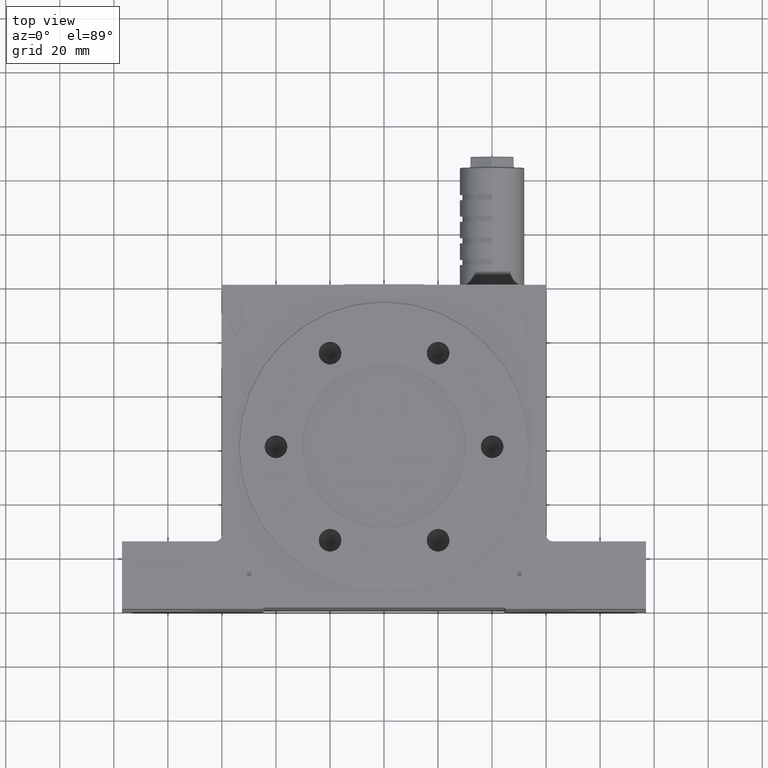
[diagram: clean part render]
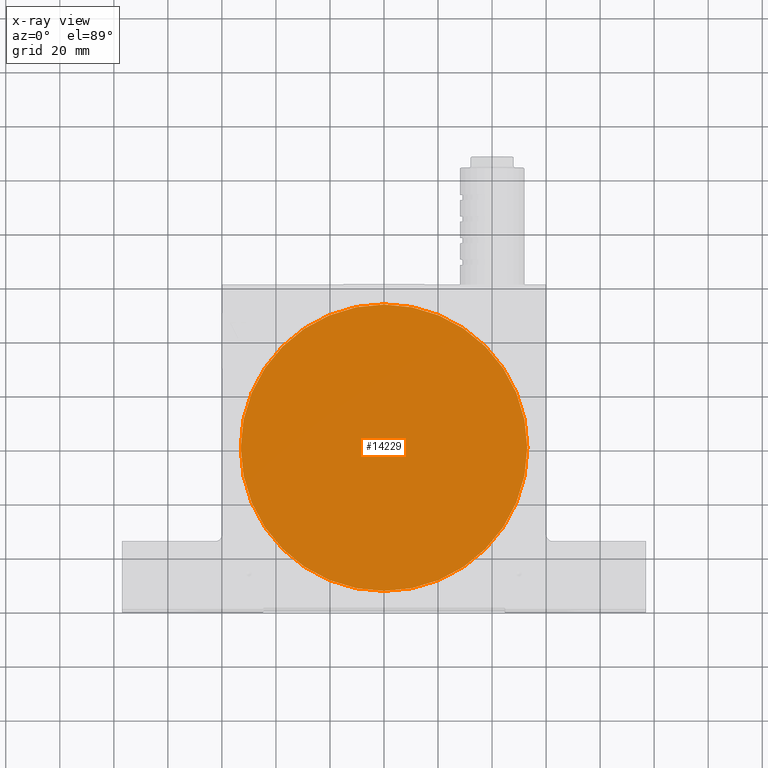
[diagram: x-ray — body ghosted, one internal face saturated and labeled with its STEP entity id]
A machine part, top view, then the same camera in x-ray: the body is ghosted and one INTERNAL B-rep face — a face not visible from any outside direction — is saturated and labeled: STEP entity #14229.
In plain terms, the highlighted planar face has unit normal (0, 0, 1).
Its self-contained STEP definition (entity closure, byte-faithful):
#715 = DIRECTION ( 'NONE',  ( -0.0000000000000000000, -0.0000000000000000000, -1.000000000000000000 ) ) ;
#1220 = DIRECTION ( 'NONE',  ( 0.0000000000000000000, 0.0000000000000000000, 1.000000000000000000 ) ) ;
#1572 = CARTESIAN_POINT ( 'NONE',  ( 53.03499999999999700, 6.494804694057099500E-015, 22.25000000000000000 ) ) ;
#2148 = ORIENTED_EDGE ( 'NONE', *, *, #7418, .T. ) ;
#2859 = AXIS2_PLACEMENT_3D ( 'NONE', #15681, #17419, #7009 ) ;
#3712 = EDGE_CURVE ( 'NONE', #7777, #15619, #6784, .T. ) ;
#5722 = CARTESIAN_POINT ( 'NONE',  ( 0.0000000000000000000, 6.494804694057099500E-015, 22.25000000000000000 ) ) ;
#6784 = CIRCLE ( 'NONE', #2859, 53.03499999999999700 ) ;
#7009 = DIRECTION ( 'NONE',  ( 1.000000000000000000, 0.0000000000000000000, 0.0000000000000000000 ) ) ;
#7418 = EDGE_CURVE ( 'NONE', #15619, #7777, #12157, .T. ) ;
#7777 = VERTEX_POINT ( 'NONE', #13773 ) ;
#9775 = CARTESIAN_POINT ( 'NONE',  ( 0.0000000000000000000, 6.494804694057099500E-015, 22.25000000000000000 ) ) ;
#12157 = CIRCLE ( 'NONE', #14022, 53.03499999999999700 ) ;
#13773 = CARTESIAN_POINT ( 'NONE',  ( -53.03499999999999700, 1.300196546132656200E-014, 22.25000000000000000 ) ) ;
#14022 = AXIS2_PLACEMENT_3D ( 'NONE', #5722, #715, #14376 ) ;
#14229 = ADVANCED_FACE ( 'NONE', ( #22109 ), #14793, .F. ) ;
#14376 = DIRECTION ( 'NONE',  ( 1.000000000000000000, 0.0000000000000000000, 0.0000000000000000000 ) ) ;
#14793 = PLANE ( 'NONE',  #16873 ) ;
#14862 = DIRECTION ( 'NONE',  ( 1.000000000000000000, 0.0000000000000000000, 0.0000000000000000000 ) ) ;
#15619 = VERTEX_POINT ( 'NONE', #1572 ) ;
#15681 = CARTESIAN_POINT ( 'NONE',  ( 0.0000000000000000000, 6.494804694057099500E-015, 22.25000000000000000 ) ) ;
#16873 = AXIS2_PLACEMENT_3D ( 'NONE', #9775, #1220, #14862 ) ;
#17419 = DIRECTION ( 'NONE',  ( -0.0000000000000000000, -0.0000000000000000000, -1.000000000000000000 ) ) ;
#18181 = ORIENTED_EDGE ( 'NONE', *, *, #3712, .T. ) ;
#19313 = EDGE_LOOP ( 'NONE', ( #2148, #18181 ) ) ;
#22109 = FACE_OUTER_BOUND ( 'NONE', #19313, .T. ) ;